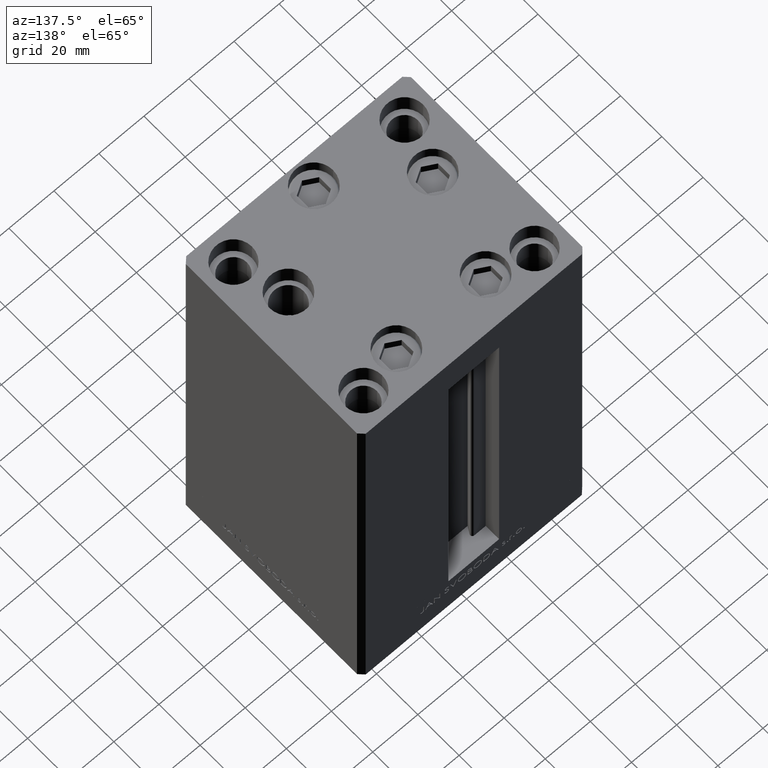
[diagram: clean part render]
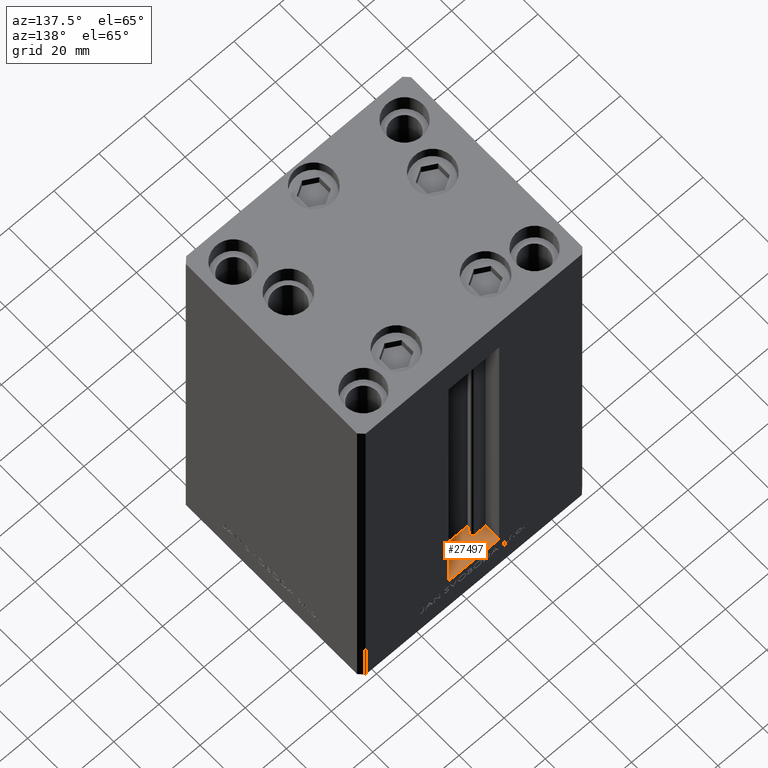
[diagram: same view with one face highlighted and labeled with its STEP entity id]
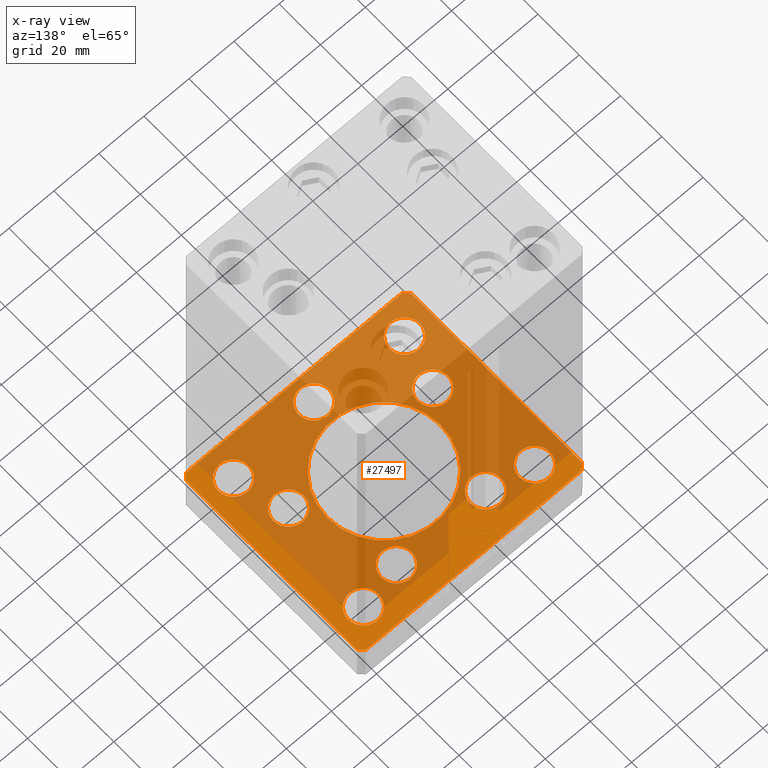
[diagram: x-ray of the same camera — body ghosted, the highlighted face saturated]
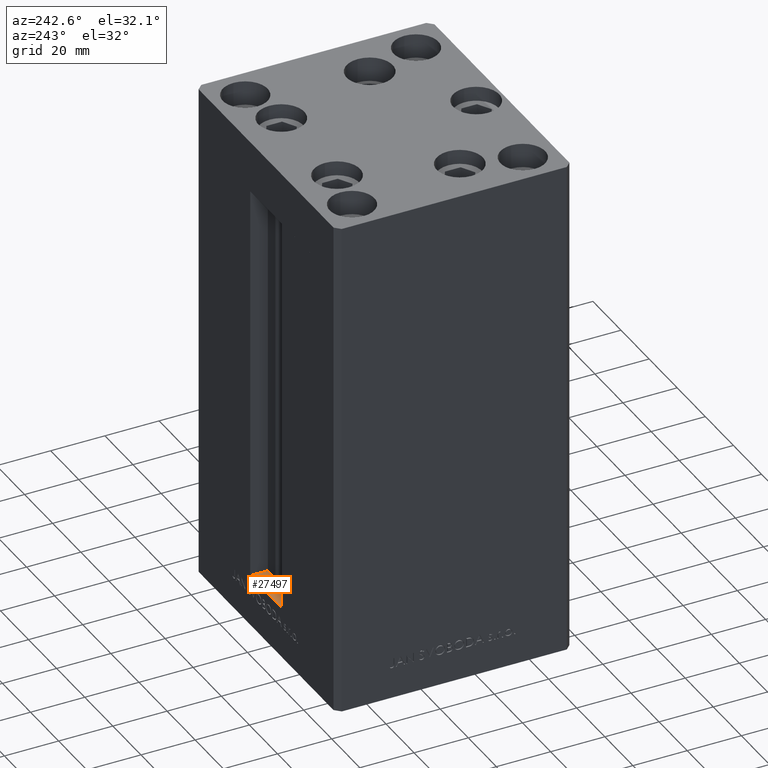
[diagram: same view with one face highlighted and labeled with its STEP entity id]
A machine part, auxiliary view. The second image highlights one B-rep face of the part: STEP entity #27497.
The next image is the same camera in x-ray: the body ghosted, the highlighted face saturated — about 75% of this face is hidden behind the body in this view.
A second angle (auxiliary view) of the same face is appended — the face is thin or edge-on in the first view.
In plain terms, the highlighted planar face has unit normal (0, 0, -1).
Its self-contained STEP definition (entity closure, byte-faithful):
#70 = EDGE_LOOP ( 'NONE', ( #14351, #33882, #37739, #20444, #28535, #17992, #25305, #27018 ) ) ;
#188 = VERTEX_POINT ( 'NONE', #11760 ) ;
#259 = DIRECTION ( 'NONE',  ( -1.000000000000000000, -2.891205793294678326E-16, 0.000000000000000000 ) ) ;
#711 = CARTESIAN_POINT ( 'NONE',  ( 50.00000000000000000, 41.50000000000000711, -19.00000000000000000 ) ) ;
#1154 = CARTESIAN_POINT ( 'NONE',  ( 38.00000000000000711, -31.50000000000000711, -19.00000000000000000 ) ) ;
#1330 = CARTESIAN_POINT ( 'NONE',  ( -31.25000000000000000, 31.50000000000000000, -19.00000000000000000 ) ) ;
#1505 = VERTEX_POINT ( 'NONE', #16199 ) ;
#1660 = CARTESIAN_POINT ( 'NONE',  ( 0.000000000000000000, 0.000000000000000000, -19.00000000000000000 ) ) ;
#1821 = AXIS2_PLACEMENT_3D ( 'NONE', #1660, #16598, #24053 ) ;
#1978 = VERTEX_POINT ( 'NONE', #1330 ) ;
#1994 = DIRECTION ( 'NONE',  ( -0.000000000000000000, 0.000000000000000000, 1.000000000000000000 ) ) ;
#2044 = VERTEX_POINT ( 'NONE', #48269 ) ;
#2473 = CARTESIAN_POINT ( 'NONE',  ( 31.25000000000000711, -31.50000000000000711, -19.00000000000000000 ) ) ;
#2697 = EDGE_CURVE ( 'NONE', #188, #21605, #44174, .T. ) ;
#2738 = EDGE_CURVE ( 'NONE', #19907, #2894, #28356, .T. ) ;
#2894 = VERTEX_POINT ( 'NONE', #8890 ) ;
#2976 = EDGE_CURVE ( 'NONE', #1505, #188, #3367, .T. ) ;
#3019 = CARTESIAN_POINT ( 'NONE',  ( 38.00000000000000711, -31.50000000000000711, -19.00000000000000000 ) ) ;
#3367 = LINE ( 'NONE', #18776, #12467 ) ;
#3504 = DIRECTION ( 'NONE',  ( 0.000000000000000000, -0.000000000000000000, -1.000000000000000000 ) ) ;
#3660 = AXIS2_PLACEMENT_3D ( 'NONE', #17745, #14243, #37072 ) ;
#3771 = FACE_BOUND ( 'NONE', #9510, .T. ) ;
#4273 = FACE_BOUND ( 'NONE', #8802, .T. ) ;
#4395 = CARTESIAN_POINT ( 'NONE',  ( 32.05550741379015989, -11.33333333333332860, -19.00000000000000000 ) ) ;
#4588 = DIRECTION ( 'NONE',  ( -0.000000000000000000, 0.000000000000000000, 1.000000000000000000 ) ) ;
#4827 = DIRECTION ( 'NONE',  ( 1.000000000000000000, 0.000000000000000000, 0.000000000000000000 ) ) ;
#4898 = DIRECTION ( 'NONE',  ( -0.000000000000000000, 0.000000000000000000, 1.000000000000000000 ) ) ;
#5313 = DIRECTION ( 'NONE',  ( 1.000000000000000000, 0.000000000000000000, 0.000000000000000000 ) ) ;
#5683 = CIRCLE ( 'NONE', #33437, 6.749999999999999112 ) ;
#6094 = DIRECTION ( 'NONE',  ( -0.000000000000000000, 0.000000000000000000, 1.000000000000000000 ) ) ;
#6369 = AXIS2_PLACEMENT_3D ( 'NONE', #45300, #23209, #4827 ) ;
#6387 = VERTEX_POINT ( 'NONE', #14443 ) ;
#6439 = VERTEX_POINT ( 'NONE', #31320 ) ;
#6442 = EDGE_LOOP ( 'NONE', ( #43541, #20813 ) ) ;
#6514 = CARTESIAN_POINT ( 'NONE',  ( 38.00000000000000000, 31.50000000000000000, -19.00000000000000000 ) ) ;
#6600 = ORIENTED_EDGE ( 'NONE', *, *, #2738, .T. ) ;
#6722 = CARTESIAN_POINT ( 'NONE',  ( 0.000000000000000000, -34.00000000000000000, -19.00000000000000000 ) ) ;
#7263 = FACE_BOUND ( 'NONE', #13753, .T. ) ;
#7466 = CIRCLE ( 'NONE', #14596, 6.749999999999999112 ) ;
#7752 = PLANE ( 'NONE',  #32805 ) ;
#8680 = AXIS2_PLACEMENT_3D ( 'NONE', #6514, #3504, #40756 ) ;
#8802 = EDGE_LOOP ( 'NONE', ( #41874, #11815 ) ) ;
#8890 = CARTESIAN_POINT ( 'NONE',  ( 38.80550741379015989, -11.33333333333332860, -19.00000000000000000 ) ) ;
#9112 = DIRECTION ( 'NONE',  ( 0.7071067811865474617, 0.7071067811865474617, 0.000000000000000000 ) ) ;
#9510 = EDGE_LOOP ( 'NONE', ( #38058, #6600 ) ) ;
#10398 = DIRECTION ( 'NONE',  ( 1.000000000000000000, 1.156482317317871331E-15, 0.000000000000000000 ) ) ;
#10444 = CIRCLE ( 'NONE', #27934, 6.749999999999999112 ) ;
#10885 = CARTESIAN_POINT ( 'NONE',  ( 50.00000000000000000, -41.49999999999992895, -19.00000000000000000 ) ) ;
#11159 = EDGE_CURVE ( 'NONE', #26289, #6439, #37958, .T. ) ;
#11241 = CARTESIAN_POINT ( 'NONE',  ( 0.000000000000000000, 0.000000000000000000, -19.00000000000000000 ) ) ;
#11361 = DIRECTION ( 'NONE',  ( -0.000000000000000000, 0.000000000000000000, 1.000000000000000000 ) ) ;
#11749 = DIRECTION ( 'NONE',  ( 0.000000000000000000, -0.000000000000000000, -1.000000000000000000 ) ) ;
#11760 = CARTESIAN_POINT ( 'NONE',  ( -50.00000000000000711, 41.49999999999999289, -19.00000000000000000 ) ) ;
#11815 = ORIENTED_EDGE ( 'NONE', *, *, #12103, .T. ) ;
#11966 = CIRCLE ( 'NONE', #46063, 6.749999999999999112 ) ;
#12027 = DIRECTION ( 'NONE',  ( 1.000000000000000000, 0.000000000000000000, 0.000000000000000000 ) ) ;
#12092 = VECTOR ( 'NONE', #24737, 1000.000000000000000 ) ;
#12103 = EDGE_CURVE ( 'NONE', #20429, #44843, #35635, .T. ) ;
#12159 = CIRCLE ( 'NONE', #1821, 25.00000000000000000 ) ;
#12467 = VECTOR ( 'NONE', #37137, 1000.000000000000000 ) ;
#12500 = CARTESIAN_POINT ( 'NONE',  ( -38.00000000000000000, 31.50000000000000000, -19.00000000000000000 ) ) ;
#12965 = EDGE_CURVE ( 'NONE', #19865, #29335, #15028, .T. ) ;
#13753 = EDGE_LOOP ( 'NONE', ( #31963, #40657 ) ) ;
#14018 = ORIENTED_EDGE ( 'NONE', *, *, #28467, .T. ) ;
#14243 = DIRECTION ( 'NONE',  ( -0.000000000000000000, 0.000000000000000000, 1.000000000000000000 ) ) ;
#14351 = ORIENTED_EDGE ( 'NONE', *, *, #23903, .F. ) ;
#14421 = DIRECTION ( 'NONE',  ( -0.000000000000000000, 0.000000000000000000, 1.000000000000000000 ) ) ;
#14443 = CARTESIAN_POINT ( 'NONE',  ( 6.749999999999999112, -34.00000000000000000, -19.00000000000000000 ) ) ;
#14477 = EDGE_CURVE ( 'NONE', #32509, #35229, #47639, .T. ) ;
#14503 = EDGE_CURVE ( 'NONE', #2044, #34625, #27509, .T. ) ;
#14596 = AXIS2_PLACEMENT_3D ( 'NONE', #19326, #11361, #27013 ) ;
#14643 = CARTESIAN_POINT ( 'NONE',  ( 50.00000000000000000, -41.49999999999992895, -19.00000000000000000 ) ) ;
#14734 = EDGE_LOOP ( 'NONE', ( #19111, #45527 ) ) ;
#14744 = CARTESIAN_POINT ( 'NONE',  ( -6.749999999999999112, -34.00000000000000000, -19.00000000000000000 ) ) ;
#14764 = CIRCLE ( 'NONE', #33048, 6.749999999999999112 ) ;
#15028 = CIRCLE ( 'NONE', #44399, 6.749999999999999112 ) ;
#15071 = CARTESIAN_POINT ( 'NONE',  ( -50.00000000000000000, -41.50000000000004263, -19.00000000000000000 ) ) ;
#15268 = DIRECTION ( 'NONE',  ( -0.000000000000000000, 0.000000000000000000, 1.000000000000000000 ) ) ;
#15577 = DIRECTION ( 'NONE',  ( 1.000000000000000000, 0.000000000000000000, 0.000000000000000000 ) ) ;
#15667 = AXIS2_PLACEMENT_3D ( 'NONE', #6722, #14421, #30314 ) ;
#16024 = ORIENTED_EDGE ( 'NONE', *, *, #37259, .T. ) ;
#16140 = LINE ( 'NONE', #711, #21210 ) ;
#16199 = CARTESIAN_POINT ( 'NONE',  ( -48.00000000000000000, 43.49999999999997158, -19.00000000000000000 ) ) ;
#16216 = CIRCLE ( 'NONE', #46331, 6.749999999999999112 ) ;
#16457 = VECTOR ( 'NONE', #259, 1000.000000000000000 ) ;
#16598 = DIRECTION ( 'NONE',  ( 0.000000000000000000, -0.000000000000000000, -1.000000000000000000 ) ) ;
#16776 = EDGE_CURVE ( 'NONE', #44843, #20429, #10444, .T. ) ;
#16858 = ORIENTED_EDGE ( 'NONE', *, *, #11159, .F. ) ;
#16957 = CIRCLE ( 'NONE', #23292, 6.749999999999999112 ) ;
#17123 = LINE ( 'NONE', #29291, #22512 ) ;
#17242 = EDGE_CURVE ( 'NONE', #42401, #24002, #5683, .T. ) ;
#17745 = CARTESIAN_POINT ( 'NONE',  ( 0.000000000000000000, -34.00000000000000000, -19.00000000000000000 ) ) ;
#17805 = CARTESIAN_POINT ( 'NONE',  ( -19.82068048781374969, 27.62499999999998934, -19.00000000000000000 ) ) ;
#17992 = ORIENTED_EDGE ( 'NONE', *, *, #21264, .F. ) ;
#18298 = CARTESIAN_POINT ( 'NONE',  ( -38.00000000000000711, -31.50000000000000711, -19.00000000000000000 ) ) ;
#18776 = CARTESIAN_POINT ( 'NONE',  ( -48.00000000000000000, 43.49999999999997158, -19.00000000000000000 ) ) ;
#18916 = CARTESIAN_POINT ( 'NONE',  ( 13.07068048781375147, 27.62499999999998934, -19.00000000000000000 ) ) ;
#19111 = ORIENTED_EDGE ( 'NONE', *, *, #28935, .T. ) ;
#19194 = CARTESIAN_POINT ( 'NONE',  ( -44.75000000000000000, 31.50000000000000000, -19.00000000000000000 ) ) ;
#19326 = CARTESIAN_POINT ( 'NONE',  ( -32.05550741379015989, -11.33333333333332860, -19.00000000000000000 ) ) ;
#19865 = VERTEX_POINT ( 'NONE', #48051 ) ;
#19907 = VERTEX_POINT ( 'NONE', #41779 ) ;
#20076 = DIRECTION ( 'NONE',  ( -0.000000000000000000, 0.000000000000000000, 1.000000000000000000 ) ) ;
#20429 = VERTEX_POINT ( 'NONE', #2473 ) ;
#20444 = ORIENTED_EDGE ( 'NONE', *, *, #39941, .F. ) ;
#20511 = CARTESIAN_POINT ( 'NONE',  ( -25.30550741379015989, -11.33333333333332860, -19.00000000000000000 ) ) ;
#20516 = ORIENTED_EDGE ( 'NONE', *, *, #48168, .F. ) ;
#20813 = ORIENTED_EDGE ( 'NONE', *, *, #33117, .F. ) ;
#20873 = CARTESIAN_POINT ( 'NONE',  ( -48.00000000000000711, -43.50000000000002842, -19.00000000000000000 ) ) ;
#21200 = AXIS2_PLACEMENT_3D ( 'NONE', #29053, #35503, #28309 ) ;
#21210 = VECTOR ( 'NONE', #24754, 999.9999999999998863 ) ;
#21264 = EDGE_CURVE ( 'NONE', #34625, #46188, #48685, .T. ) ;
#21605 = VERTEX_POINT ( 'NONE', #15071 ) ;
#22306 = CARTESIAN_POINT ( 'NONE',  ( 50.00000000000000000, 41.50000000000000711, -19.00000000000000000 ) ) ;
#22512 = VECTOR ( 'NONE', #10398, 1000.000000000000000 ) ;
#22627 = VERTEX_POINT ( 'NONE', #36797 ) ;
#23209 = DIRECTION ( 'NONE',  ( 0.000000000000000000, -0.000000000000000000, -1.000000000000000000 ) ) ;
#23292 = AXIS2_PLACEMENT_3D ( 'NONE', #34627, #4588, #31422 ) ;
#23406 = CARTESIAN_POINT ( 'NONE',  ( 0.000000000000000000, 0.000000000000000000, -19.00000000000000000 ) ) ;
#23903 = EDGE_CURVE ( 'NONE', #21605, #34382, #36864, .T. ) ;
#24002 = VERTEX_POINT ( 'NONE', #45538 ) ;
#24053 = DIRECTION ( 'NONE',  ( 1.000000000000000000, 0.000000000000000000, 0.000000000000000000 ) ) ;
#24174 = VERTEX_POINT ( 'NONE', #19194 ) ;
#24440 = CIRCLE ( 'NONE', #15667, 6.749999999999999112 ) ;
#24504 = CARTESIAN_POINT ( 'NONE',  ( 47.99999999999999289, 43.50000000000000000, -19.00000000000000000 ) ) ;
#24737 = DIRECTION ( 'NONE',  ( 0.7071067811865487940, -0.7071067811865463515, 0.000000000000000000 ) ) ;
#24754 = DIRECTION ( 'NONE',  ( -0.7071067811865512365, 0.7071067811865439090, 0.000000000000000000 ) ) ;
#24769 = DIRECTION ( 'NONE',  ( -0.000000000000000000, 0.000000000000000000, 1.000000000000000000 ) ) ;
#24914 = DIRECTION ( 'NONE',  ( 1.000000000000000000, 0.000000000000000000, 0.000000000000000000 ) ) ;
#25113 = CIRCLE ( 'NONE', #3660, 6.749999999999999112 ) ;
#25288 = AXIS2_PLACEMENT_3D ( 'NONE', #12500, #27663, #24914 ) ;
#25305 = ORIENTED_EDGE ( 'NONE', *, *, #14503, .F. ) ;
#25444 = CARTESIAN_POINT ( 'NONE',  ( 25.00000000000000000, 0.000000000000000000, -19.00000000000000000 ) ) ;
#26053 = CIRCLE ( 'NONE', #25288, 6.749999999999999112 ) ;
#26289 = VERTEX_POINT ( 'NONE', #30567 ) ;
#26335 = CARTESIAN_POINT ( 'NONE',  ( -38.80550741379015989, -11.33333333333332860, -19.00000000000000000 ) ) ;
#26396 = DIRECTION ( 'NONE',  ( -0.000000000000000000, 0.000000000000000000, 1.000000000000000000 ) ) ;
#26634 = FACE_BOUND ( 'NONE', #6442, .T. ) ;
#26652 = EDGE_CURVE ( 'NONE', #33941, #22627, #12159, .T. ) ;
#27013 = DIRECTION ( 'NONE',  ( 1.000000000000000000, 0.000000000000000000, 0.000000000000000000 ) ) ;
#27018 = ORIENTED_EDGE ( 'NONE', *, *, #27925, .F. ) ;
#27379 = FACE_BOUND ( 'NONE', #43636, .T. ) ;
#27497 = ADVANCED_FACE ( 'NONE', ( #26634, #41753, #37545, #3771, #27379, #7263, #30856, #30370, #34562, #45991, #4273 ), #7752, .F. ) ;
#27509 = LINE ( 'NONE', #43138, #30972 ) ;
#27663 = DIRECTION ( 'NONE',  ( -0.000000000000000000, 0.000000000000000000, 1.000000000000000000 ) ) ;
#27925 = EDGE_CURVE ( 'NONE', #34382, #2044, #17123, .T. ) ;
#27934 = AXIS2_PLACEMENT_3D ( 'NONE', #1154, #4898, #15577 ) ;
#27953 = CARTESIAN_POINT ( 'NONE',  ( -26.57068048781375325, 27.62499999999998934, -19.00000000000000000 ) ) ;
#28167 = EDGE_LOOP ( 'NONE', ( #14018, #28322 ) ) ;
#28309 = DIRECTION ( 'NONE',  ( 1.000000000000000000, 0.000000000000000000, 0.000000000000000000 ) ) ;
#28322 = ORIENTED_EDGE ( 'NONE', *, *, #43570, .T. ) ;
#28356 = CIRCLE ( 'NONE', #21200, 6.749999999999999112 ) ;
#28467 = EDGE_CURVE ( 'NONE', #1978, #24174, #16957, .T. ) ;
#28535 = ORIENTED_EDGE ( 'NONE', *, *, #36576, .F. ) ;
#28680 = ORIENTED_EDGE ( 'NONE', *, *, #34028, .T. ) ;
#28935 = EDGE_CURVE ( 'NONE', #38666, #37319, #7466, .T. ) ;
#28959 = CARTESIAN_POINT ( 'NONE',  ( -50.00000000000000000, -41.50000000000004263, -19.00000000000000000 ) ) ;
#29053 = CARTESIAN_POINT ( 'NONE',  ( 32.05550741379015989, -11.33333333333332860, -19.00000000000000000 ) ) ;
#29088 = EDGE_CURVE ( 'NONE', #29335, #19865, #16216, .T. ) ;
#29291 = CARTESIAN_POINT ( 'NONE',  ( -48.00000000000000711, -43.50000000000002842, -19.00000000000000000 ) ) ;
#29335 = VERTEX_POINT ( 'NONE', #27953 ) ;
#29902 = EDGE_CURVE ( 'NONE', #37319, #38666, #41554, .T. ) ;
#30314 = DIRECTION ( 'NONE',  ( 1.000000000000000000, 0.000000000000000000, 0.000000000000000000 ) ) ;
#30356 = LINE ( 'NONE', #37766, #16457 ) ;
#30370 = FACE_BOUND ( 'NONE', #34515, .T. ) ;
#30378 = DIRECTION ( 'NONE',  ( 0.000000000000000000, -0.000000000000000000, -1.000000000000000000 ) ) ;
#30410 = ORIENTED_EDGE ( 'NONE', *, *, #17242, .F. ) ;
#30567 = CARTESIAN_POINT ( 'NONE',  ( 31.25000000000000000, 31.50000000000000000, -19.00000000000000000 ) ) ;
#30569 = EDGE_LOOP ( 'NONE', ( #16024, #28680 ) ) ;
#30598 = CIRCLE ( 'NONE', #44868, 25.00000000000000000 ) ;
#30674 = EDGE_LOOP ( 'NONE', ( #20516, #16858 ) ) ;
#30856 = FACE_BOUND ( 'NONE', #30674, .T. ) ;
#30972 = VECTOR ( 'NONE', #9112, 1000.000000000000114 ) ;
#31320 = CARTESIAN_POINT ( 'NONE',  ( 44.75000000000000000, 31.50000000000000000, -19.00000000000000000 ) ) ;
#31422 = DIRECTION ( 'NONE',  ( 1.000000000000000000, 0.000000000000000000, 0.000000000000000000 ) ) ;
#31729 = DIRECTION ( 'NONE',  ( 1.000000000000000000, 0.000000000000000000, 0.000000000000000000 ) ) ;
#31774 = CIRCLE ( 'NONE', #6369, 6.749999999999999112 ) ;
#31963 = ORIENTED_EDGE ( 'NONE', *, *, #12965, .T. ) ;
#32437 = CARTESIAN_POINT ( 'NONE',  ( -19.82068048781374969, 27.62499999999998934, -19.00000000000000000 ) ) ;
#32509 = VERTEX_POINT ( 'NONE', #41152 ) ;
#32805 = AXIS2_PLACEMENT_3D ( 'NONE', #23406, #26396, #45492 ) ;
#33048 = AXIS2_PLACEMENT_3D ( 'NONE', #18298, #11749, #34589 ) ;
#33052 = CARTESIAN_POINT ( 'NONE',  ( 44.75000000000000711, -31.50000000000000711, -19.00000000000000000 ) ) ;
#33117 = EDGE_CURVE ( 'NONE', #22627, #33941, #30598, .T. ) ;
#33336 = DIRECTION ( 'NONE',  ( -0.000000000000000000, 0.000000000000000000, 1.000000000000000000 ) ) ;
#33437 = AXIS2_PLACEMENT_3D ( 'NONE', #39811, #43309, #5313 ) ;
#33882 = ORIENTED_EDGE ( 'NONE', *, *, #2697, .F. ) ;
#33941 = VERTEX_POINT ( 'NONE', #25444 ) ;
#34028 = EDGE_CURVE ( 'NONE', #47126, #6387, #25113, .T. ) ;
#34382 = VERTEX_POINT ( 'NONE', #20873 ) ;
#34515 = EDGE_LOOP ( 'NONE', ( #36076, #30410 ) ) ;
#34562 = FACE_OUTER_BOUND ( 'NONE', #70, .T. ) ;
#34589 = DIRECTION ( 'NONE',  ( 1.000000000000000000, 0.000000000000000000, 0.000000000000000000 ) ) ;
#34625 = VERTEX_POINT ( 'NONE', #10885 ) ;
#34627 = CARTESIAN_POINT ( 'NONE',  ( -38.00000000000000000, 31.50000000000000000, -19.00000000000000000 ) ) ;
#34690 = DIRECTION ( 'NONE',  ( 1.000000000000000000, 0.000000000000000000, 0.000000000000000000 ) ) ;
#34948 = DIRECTION ( 'NONE',  ( -0.000000000000000000, 0.000000000000000000, 1.000000000000000000 ) ) ;
#34964 = EDGE_CURVE ( 'NONE', #24002, #42401, #14764, .T. ) ;
#35229 = VERTEX_POINT ( 'NONE', #18916 ) ;
#35503 = DIRECTION ( 'NONE',  ( -0.000000000000000000, 0.000000000000000000, 1.000000000000000000 ) ) ;
#35635 = CIRCLE ( 'NONE', #43576, 6.749999999999999112 ) ;
#35712 = VERTEX_POINT ( 'NONE', #24504 ) ;
#36076 = ORIENTED_EDGE ( 'NONE', *, *, #34964, .F. ) ;
#36231 = CARTESIAN_POINT ( 'NONE',  ( -50.00000000000000711, 41.49999999999999289, -19.00000000000000000 ) ) ;
#36576 = EDGE_CURVE ( 'NONE', #46188, #35712, #16140, .T. ) ;
#36797 = CARTESIAN_POINT ( 'NONE',  ( -25.00000000000000000, 3.061616997868383043E-15, -19.00000000000000000 ) ) ;
#36864 = LINE ( 'NONE', #28959, #12092 ) ;
#36869 = DIRECTION ( 'NONE',  ( 1.000000000000000000, 0.000000000000000000, 0.000000000000000000 ) ) ;
#37072 = DIRECTION ( 'NONE',  ( 1.000000000000000000, 0.000000000000000000, 0.000000000000000000 ) ) ;
#37137 = DIRECTION ( 'NONE',  ( -0.7071067811865536790, -0.7071067811865414665, 0.000000000000000000 ) ) ;
#37259 = EDGE_CURVE ( 'NONE', #6387, #47126, #24440, .T. ) ;
#37319 = VERTEX_POINT ( 'NONE', #26335 ) ;
#37545 = FACE_BOUND ( 'NONE', #30569, .T. ) ;
#37739 = ORIENTED_EDGE ( 'NONE', *, *, #2976, .F. ) ;
#37766 = CARTESIAN_POINT ( 'NONE',  ( 47.99999999999999289, 43.50000000000000000, -19.00000000000000000 ) ) ;
#37772 = EDGE_CURVE ( 'NONE', #2894, #19907, #41829, .T. ) ;
#37958 = CIRCLE ( 'NONE', #8680, 6.749999999999999112 ) ;
#38050 = AXIS2_PLACEMENT_3D ( 'NONE', #46374, #34948, #31729 ) ;
#38058 = ORIENTED_EDGE ( 'NONE', *, *, #37772, .T. ) ;
#38666 = VERTEX_POINT ( 'NONE', #20511 ) ;
#39090 = ORIENTED_EDGE ( 'NONE', *, *, #14477, .T. ) ;
#39811 = CARTESIAN_POINT ( 'NONE',  ( -38.00000000000000711, -31.50000000000000711, -19.00000000000000000 ) ) ;
#39941 = EDGE_CURVE ( 'NONE', #35712, #1505, #30356, .T. ) ;
#39993 = CARTESIAN_POINT ( 'NONE',  ( -32.05550741379015989, -11.33333333333332860, -19.00000000000000000 ) ) ;
#40620 = DIRECTION ( 'NONE',  ( 1.000000000000000000, 0.000000000000000000, 0.000000000000000000 ) ) ;
#40657 = ORIENTED_EDGE ( 'NONE', *, *, #29088, .T. ) ;
#40756 = DIRECTION ( 'NONE',  ( 1.000000000000000000, 0.000000000000000000, 0.000000000000000000 ) ) ;
#41152 = CARTESIAN_POINT ( 'NONE',  ( 26.57068048781374969, 27.62499999999998934, -19.00000000000000000 ) ) ;
#41248 = DIRECTION ( 'NONE',  ( 1.000000000000000000, 0.000000000000000000, 0.000000000000000000 ) ) ;
#41554 = CIRCLE ( 'NONE', #45537, 6.749999999999999112 ) ;
#41753 = FACE_BOUND ( 'NONE', #14734, .T. ) ;
#41779 = CARTESIAN_POINT ( 'NONE',  ( 25.30550741379015989, -11.33333333333332860, -19.00000000000000000 ) ) ;
#41829 = CIRCLE ( 'NONE', #43425, 6.749999999999999112 ) ;
#41874 = ORIENTED_EDGE ( 'NONE', *, *, #16776, .T. ) ;
#42015 = DIRECTION ( 'NONE',  ( 1.000000000000000000, 0.000000000000000000, 0.000000000000000000 ) ) ;
#42401 = VERTEX_POINT ( 'NONE', #45358 ) ;
#43138 = CARTESIAN_POINT ( 'NONE',  ( 48.00000000000000711, -43.49999999999992184, -19.00000000000000000 ) ) ;
#43200 = DIRECTION ( 'NONE',  ( 8.360113137237620037E-17, -1.000000000000000000, 0.000000000000000000 ) ) ;
#43249 = DIRECTION ( 'NONE',  ( 1.000000000000000000, 0.000000000000000000, 0.000000000000000000 ) ) ;
#43309 = DIRECTION ( 'NONE',  ( 0.000000000000000000, -0.000000000000000000, -1.000000000000000000 ) ) ;
#43425 = AXIS2_PLACEMENT_3D ( 'NONE', #4395, #20076, #34690 ) ;
#43541 = ORIENTED_EDGE ( 'NONE', *, *, #26652, .F. ) ;
#43570 = EDGE_CURVE ( 'NONE', #24174, #1978, #26053, .T. ) ;
#43576 = AXIS2_PLACEMENT_3D ( 'NONE', #3019, #33336, #41248 ) ;
#43636 = EDGE_LOOP ( 'NONE', ( #39090, #47429 ) ) ;
#44174 = LINE ( 'NONE', #36231, #48173 ) ;
#44399 = AXIS2_PLACEMENT_3D ( 'NONE', #32437, #6094, #36869 ) ;
#44843 = VERTEX_POINT ( 'NONE', #33052 ) ;
#44868 = AXIS2_PLACEMENT_3D ( 'NONE', #11241, #30378, #42015 ) ;
#44933 = DIRECTION ( 'NONE',  ( 0.000000000000000000, 1.000000000000000000, 0.000000000000000000 ) ) ;
#45300 = CARTESIAN_POINT ( 'NONE',  ( 38.00000000000000000, 31.50000000000000000, -19.00000000000000000 ) ) ;
#45358 = CARTESIAN_POINT ( 'NONE',  ( -44.75000000000000711, -31.50000000000000711, -19.00000000000000000 ) ) ;
#45492 = DIRECTION ( 'NONE',  ( 1.000000000000000000, 0.000000000000000000, 0.000000000000000000 ) ) ;
#45527 = ORIENTED_EDGE ( 'NONE', *, *, #29902, .T. ) ;
#45537 = AXIS2_PLACEMENT_3D ( 'NONE', #39993, #1994, #43249 ) ;
#45538 = CARTESIAN_POINT ( 'NONE',  ( -31.25000000000000711, -31.50000000000000711, -19.00000000000000000 ) ) ;
#45991 = FACE_BOUND ( 'NONE', #28167, .T. ) ;
#46063 = AXIS2_PLACEMENT_3D ( 'NONE', #46553, #15268, #12027 ) ;
#46188 = VERTEX_POINT ( 'NONE', #22306 ) ;
#46240 = VECTOR ( 'NONE', #44933, 1000.000000000000000 ) ;
#46331 = AXIS2_PLACEMENT_3D ( 'NONE', #17805, #24769, #40620 ) ;
#46374 = CARTESIAN_POINT ( 'NONE',  ( 19.82068048781374969, 27.62499999999998934, -19.00000000000000000 ) ) ;
#46553 = CARTESIAN_POINT ( 'NONE',  ( 19.82068048781374969, 27.62499999999998934, -19.00000000000000000 ) ) ;
#47126 = VERTEX_POINT ( 'NONE', #14744 ) ;
#47429 = ORIENTED_EDGE ( 'NONE', *, *, #49091, .T. ) ;
#47639 = CIRCLE ( 'NONE', #38050, 6.749999999999999112 ) ;
#48051 = CARTESIAN_POINT ( 'NONE',  ( -13.07068048781375325, 27.62499999999998934, -19.00000000000000000 ) ) ;
#48168 = EDGE_CURVE ( 'NONE', #6439, #26289, #31774, .T. ) ;
#48173 = VECTOR ( 'NONE', #43200, 1000.000000000000000 ) ;
#48269 = CARTESIAN_POINT ( 'NONE',  ( 48.00000000000000711, -43.49999999999992184, -19.00000000000000000 ) ) ;
#48685 = LINE ( 'NONE', #14643, #46240 ) ;
#49091 = EDGE_CURVE ( 'NONE', #35229, #32509, #11966, .T. ) ;